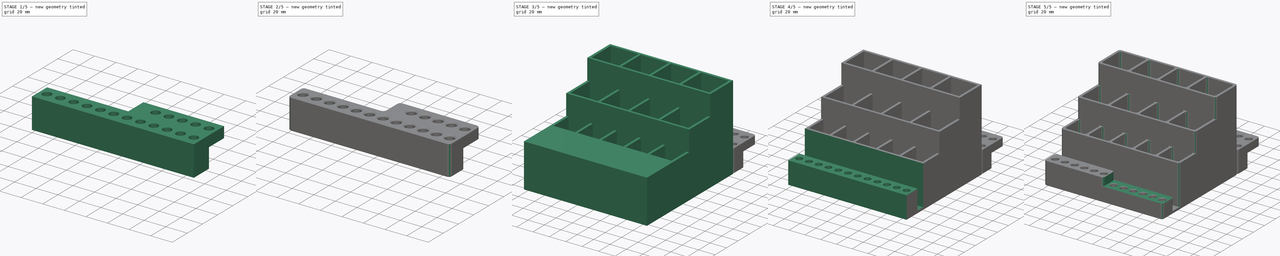
[diagram: build sequence overview — one tinted view per stage of 5, left to right]
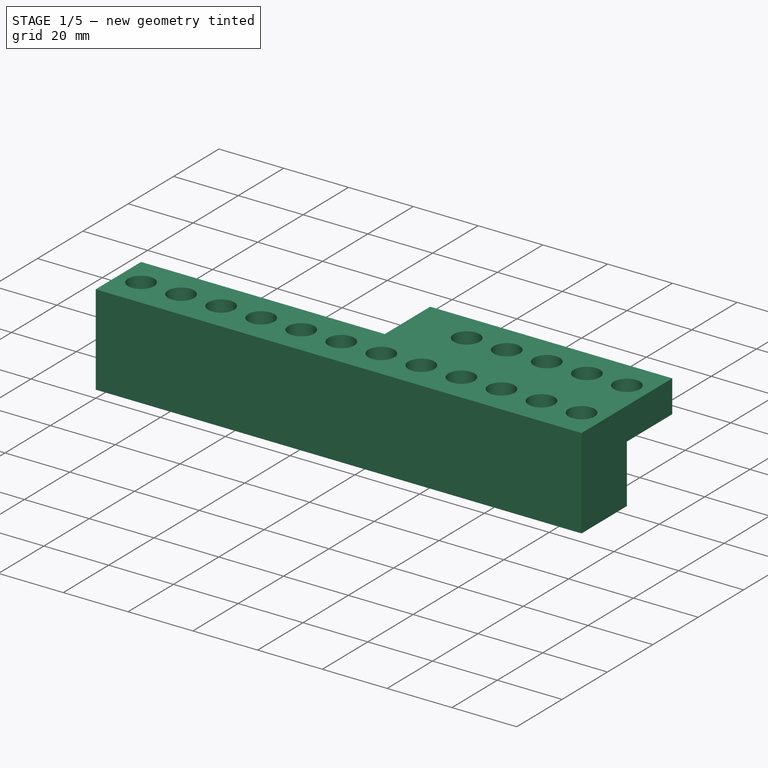
[diagram: stage 1 of 5 — iso view after this stage's code; geometry added in this stage tinted green]
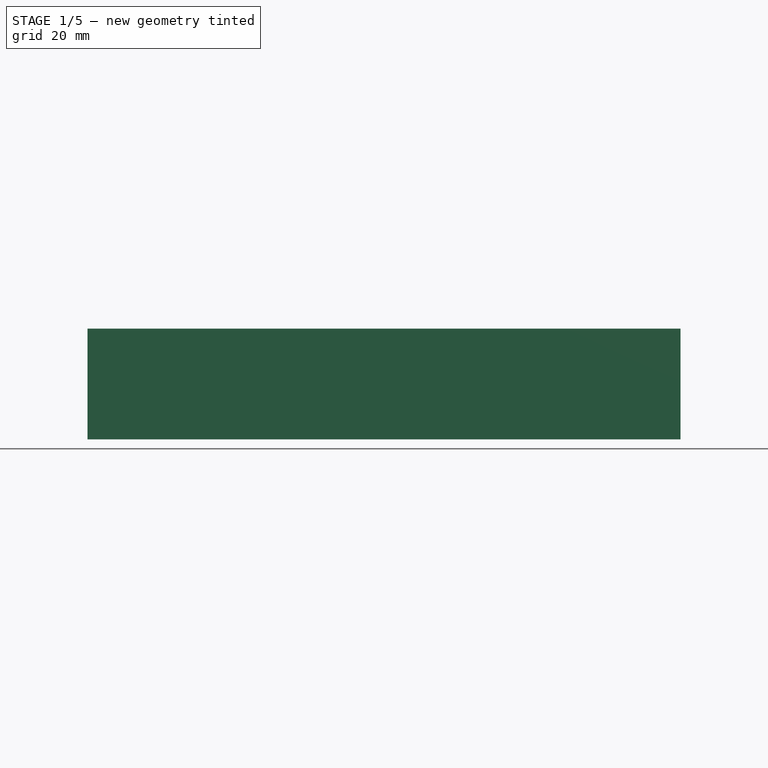
[diagram: stage 1 of 5 — front view after this stage's code; geometry added in this stage tinted green]
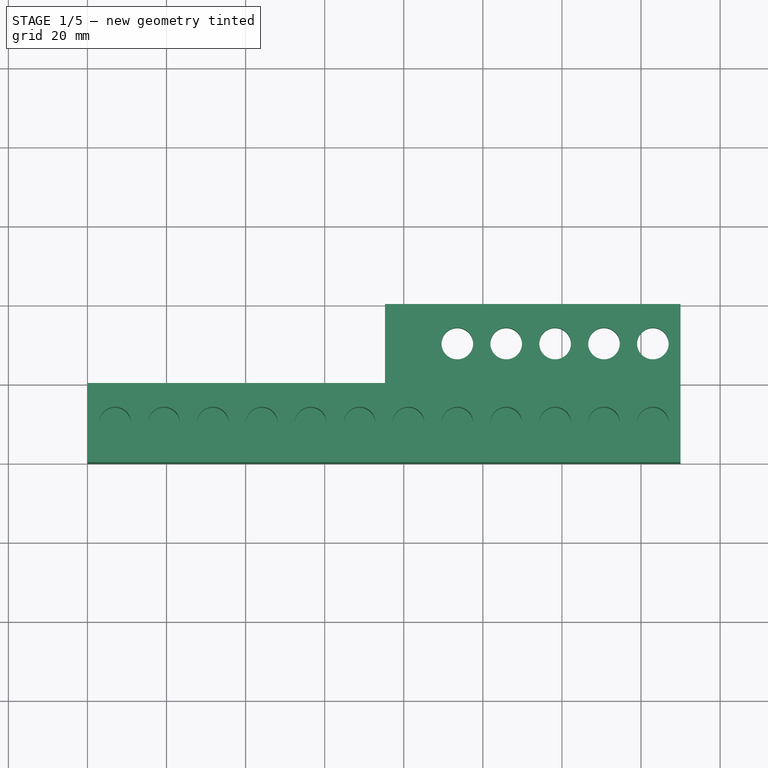
[diagram: stage 1 of 5 — top view after this stage's code; geometry added in this stage tinted green]
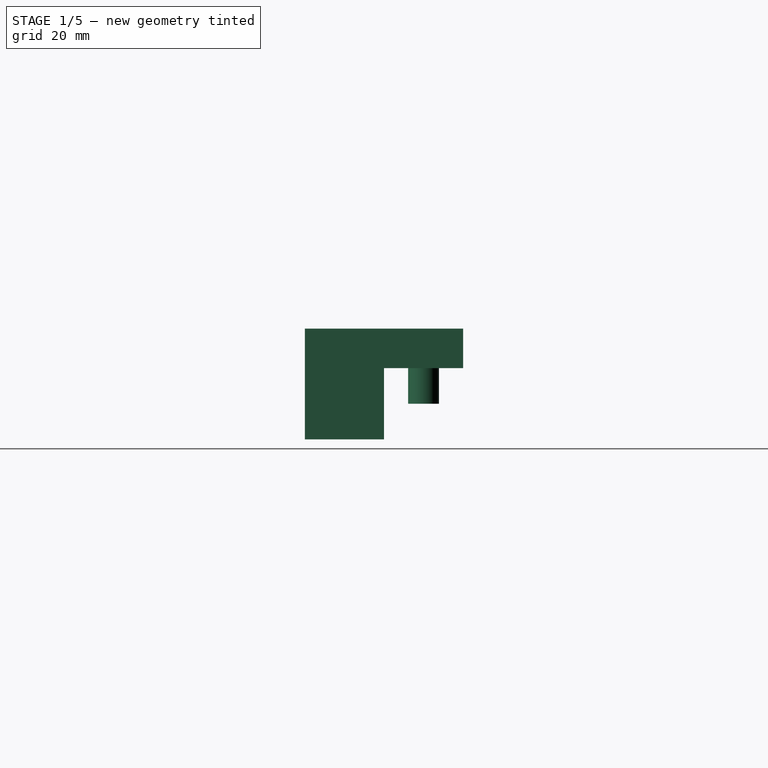
[diagram: stage 1 of 5 — right view after this stage's code; geometry added in this stage tinted green]
FCSTD DOCUMENT  (FreeCAD 0.21R33675 (Git))
Label: pen-holder
License: All rights reserved
LicenseURL: http://en.wikipedia.org/wiki/All_rights_reserved
objects: Sketcher::SketchObject×16, PartDesign::Pocket×14, PartDesign::Pad×4, PartDesign::Fillet×4, PartDesign::Chamfer×4, PartDesign::LinearPattern×2, PartDesign::Body×2
note: 72 computed .brp shape members not serialized (recipe doc carries the construction recipe); baked Part::Feature solids carry a one-line shape summary decoded from their .brp

FEATURE [PartDesign::Body] Body
  Group = -> [Sketch,Pad,Sketch001,Pocket,Sketch002,Pocket001,Sketch003,Pocket002,Sketch004,Pocket003,Sketch005,Pocket004,Sketch006,Pocket005,Sketch007,Pocket006,Sketch008,Pocket007,LinearPattern,Sketch009,Pocket008,Fillet,Fillet001,Sketch010,Pocket009,Fillet002,Chamfer,Chamfer001]
  Origin = -> Origin
  Tip = -> Chamfer001
FEATURE [Sketcher::SketchObject] Sketch011
  FullyConstrained = true
  MapMode = 5
  Support = -> [XY_Plane001]
  sketch-geometry (4):
    g0: LineSegment StartX=0 StartY=0 StartZ=0 EndX=150 EndY=0 EndZ=0
    g1: LineSegment StartX=150 StartY=0 StartZ=0 EndX=150 EndY=20 EndZ=0
    g2: LineSegment StartX=150 StartY=20 StartZ=0 EndX=0 EndY=20 EndZ=0
    g3: LineSegment StartX=0 StartY=20 StartZ=0 EndX=0 EndY=0 EndZ=0
  constraints (11):
    c: Coincident(g0,g1)
    c: Coincident(g1,g2)
    c: Coincident(g2,g3)
    c: Coincident(g3,g0)
    c: Horizontal(g0)
    c: Horizontal(g2)
    c: Vertical(g1)
    c: Vertical(g3)
    c: Coincident(g0,g-1)
    c: DistanceX(g2,g2) = 150
    c: DistanceY(g1,g1) = 20
FEATURE [PartDesign::Pad] Pad001
  Direction = (0,0,1)
  Length = 28
  Length2 = 10
  Profile = -> Sketch011
  ReferenceAxis = -> Sketch011 [N_Axis]
  Type = 0
FEATURE [Sketcher::SketchObject] Sketch012
  FullyConstrained = true
  MapMode = 5
  Placement = pos=(0,0,28) rot=(0,0,1;0rad)
  Support = -> [Pad001]
  sketch-geometry (1):
    g0: Circle CenterX=7 CenterY=10 CenterZ=0 NormalX=0 NormalY=0 NormalZ=1 AngleXU=0 Radius=4
  constraints (3):
    c: DistanceX(g-1,g0) = 7
    c: Radius(g0) = 4
    c: DistanceY(g-1,g0) = 10
FEATURE [PartDesign::Pocket] Pocket010
  BaseFeature = -> Pad001
  Direction = (0,0,-1)
  Length = 15
  Length2 = 5
  Profile = -> Sketch012
  ReferenceAxis = -> Sketch012 [N_Axis]
  Type = 0
FEATURE [PartDesign::LinearPattern] LinearPattern001
  BaseFeature = -> Pocket010
  Direction = -> Sketch012 [H_Axis]
  Length = 136
  Occurrences = 12
  Originals = -> [Pocket010]
FEATURE [Sketcher::SketchObject] Sketch013
  ExternalGeometry = -> [LinearPattern001]
  FullyConstrained = true
  MapMode = 5
  Placement = pos=(0,0,28) rot=(0,0,1;0rad)
  Support = -> [LinearPattern001]
  sketch-geometry (4):
    g0: LineSegment StartX=150 StartY=20 StartZ=0 EndX=75.25 EndY=20 EndZ=0
    g1: LineSegment StartX=75.25 StartY=20 StartZ=0 EndX=75.25 EndY=40 EndZ=0
    g2: LineSegment StartX=75.25 StartY=40 StartZ=0 EndX=150 EndY=40 EndZ=0
    g3: LineSegment StartX=150 StartY=40 StartZ=0 EndX=150 EndY=20 EndZ=0
  constraints (11):
    c: Coincident(g0,g1)
    c: Coincident(g1,g2)
    c: Coincident(g2,g3)
    c: Coincident(g3,g0)
    c: Horizontal(g0)
    c: Horizontal(g2)
    c: Vertical(g1)
    c: Vertical(g3)
    c: Coincident(g0,g-3)
    c: DistanceX(g2,g2) = 74.75
    c: DistanceY(g3,g3) = 20
FEATURE [PartDesign::Pad] Pad002
  BaseFeature = -> LinearPattern001
  Direction = (0,0,1)
  Length = 10
  Length2 = 10
  Profile = -> Sketch013
  ReferenceAxis = -> Sketch013 [N_Axis]
  Reversed = true
  Type = 0
FEATURE [Sketcher::SketchObject] Sketch014
  ExternalGeometry = -> [Pad002]
  FullyConstrained = true
  MapMode = 5
  Placement = pos=(0,0,28) rot=(0,0,1;0rad)
  Support = -> [Pad002]
  sketch-geometry (5):
    g0: Circle CenterX=93.5455 CenterY=30 CenterZ=0 NormalX=0 NormalY=0 NormalZ=1 AngleXU=0 Radius=4
    g1: Circle CenterX=105.909 CenterY=30 CenterZ=0 NormalX=0 NormalY=0 NormalZ=1 AngleXU=0 Radius=4
    g2: Circle CenterX=118.273 CenterY=30 CenterZ=0 NormalX=0 NormalY=0 NormalZ=1 AngleXU=0 Radius=4
    g3: Circle CenterX=130.636 CenterY=30 CenterZ=0 NormalX=0 NormalY=0 NormalZ=1 AngleXU=0 Radius=4
    g4: Circle CenterX=143 CenterY=30 CenterZ=0 NormalX=0 NormalY=0 NormalZ=1 AngleXU=0 Radius=4
  constraints (15):
    c: Equal(g0,g1)
    c: Equal(g1,g2)
    c: Equal(g2,g3)
    c: Equal(g3,g4)
    c: Horizontal(g0,g1)
    c: Horizontal(g1,g2)
    c: Horizontal(g2,g3)
    c: Horizontal(g3,g4)
    c: Vertical(g0,g-5)
    c: Vertical(g1,g-6)
    c: Vertical(g2,g-7)
    c: Vertical(g3,g-8)
    c: Vertical(g4,g-9)
    c: DistanceY(g-3,g0) = 10
    c: Equal(g0,g-5)
FEATURE [PartDesign::Pocket] Pocket011
  BaseFeature = -> Pad002
  Direction = (0,0,-1)
  Length = 5
  Length2 = 5
  Profile = -> Sketch014
  ReferenceAxis = -> Sketch014 [N_Axis]
  Type = 1
FEATURE [Sketcher::SketchObject] Sketch015
  ExternalGeometry = -> [Pocket011]
  FullyConstrained = true
  MapMode = 5
  Placement = pos=(0,0,18) rot=(1,0,0;3.14159rad)
  Support = -> [Pocket011]
  sketch-geometry (1):
    g0: Circle CenterX=81.1818 CenterY=-30 CenterZ=0 NormalX=0 NormalY=0 NormalZ=1 AngleXU=0 Radius=3.9
  constraints (3):
    c: Vertical(g0,g-4)
    c: DistanceY(g-3,g0) = 10
    c: Radius(g0) = 3.9
FEATURE [PartDesign::Pad] Pad003
  BaseFeature = -> Pocket011
  Direction = (0,0,-1)
  Length = 9
  Length2 = 10
  Profile = -> Sketch015
  ReferenceAxis = -> Sketch015 [N_Axis]
  Type = 0
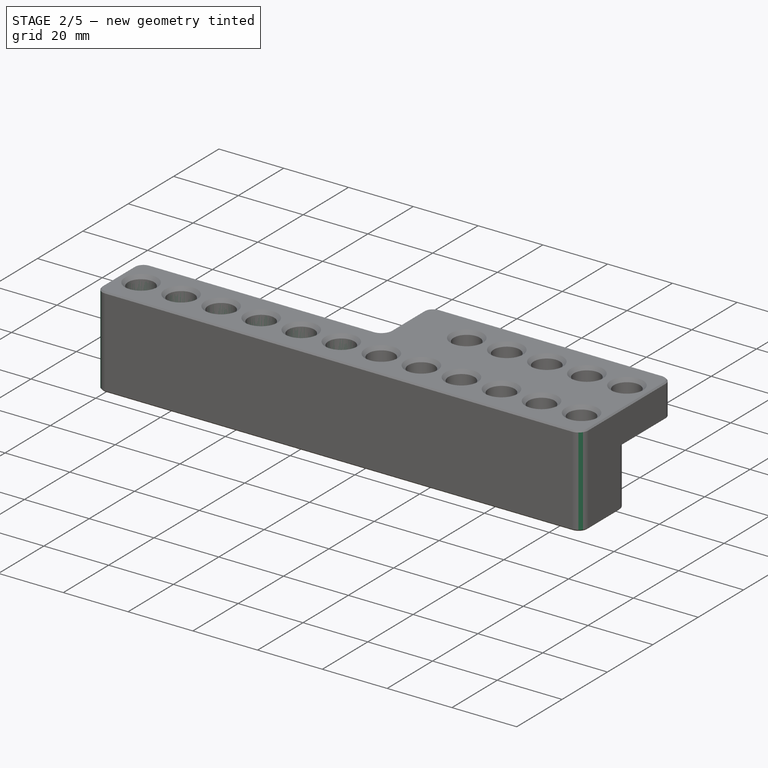
[diagram: stage 2 of 5 — iso view after this stage's code; geometry added in this stage tinted green]
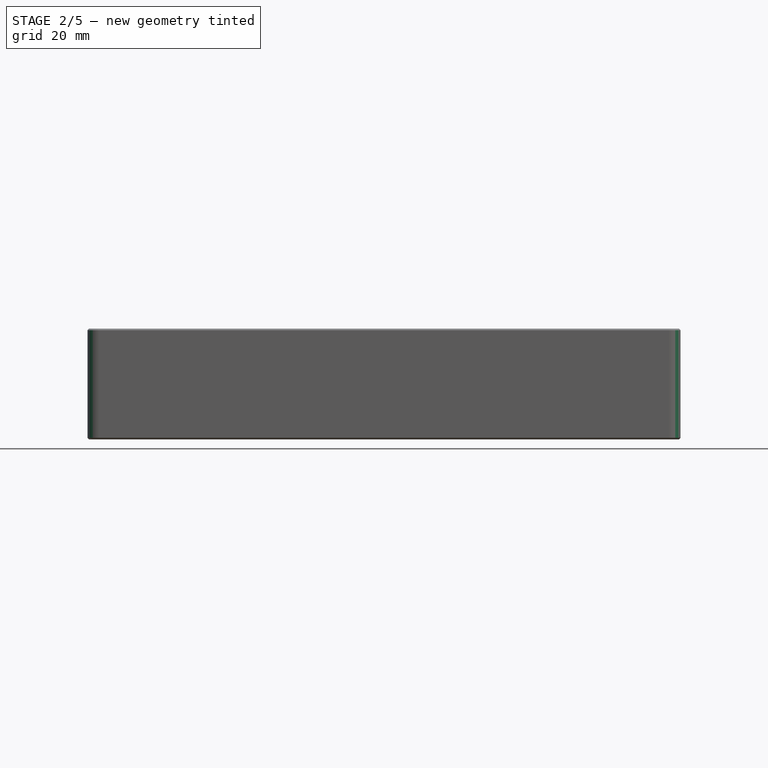
[diagram: stage 2 of 5 — front view after this stage's code; geometry added in this stage tinted green]
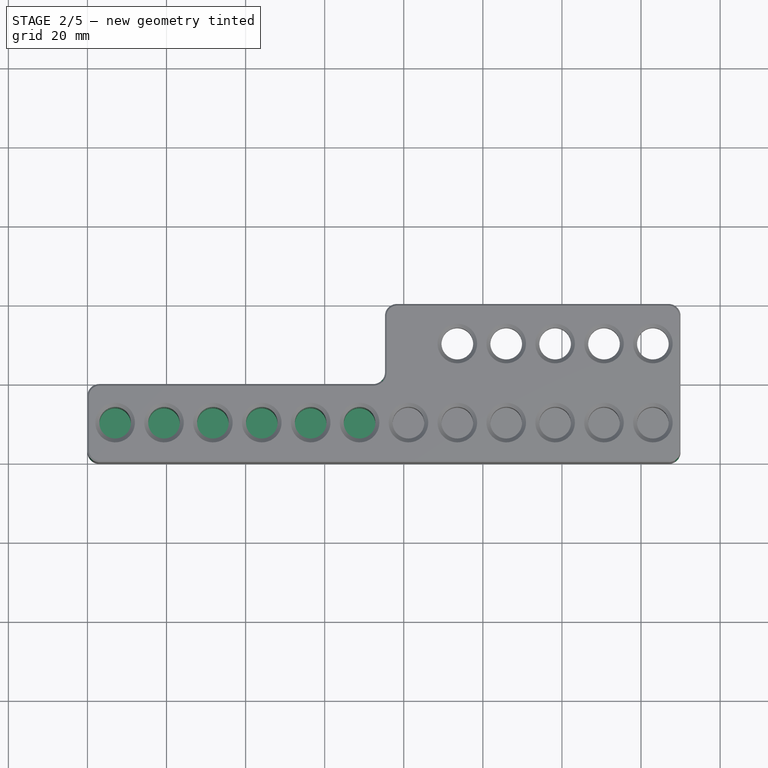
[diagram: stage 2 of 5 — top view after this stage's code; geometry added in this stage tinted green]
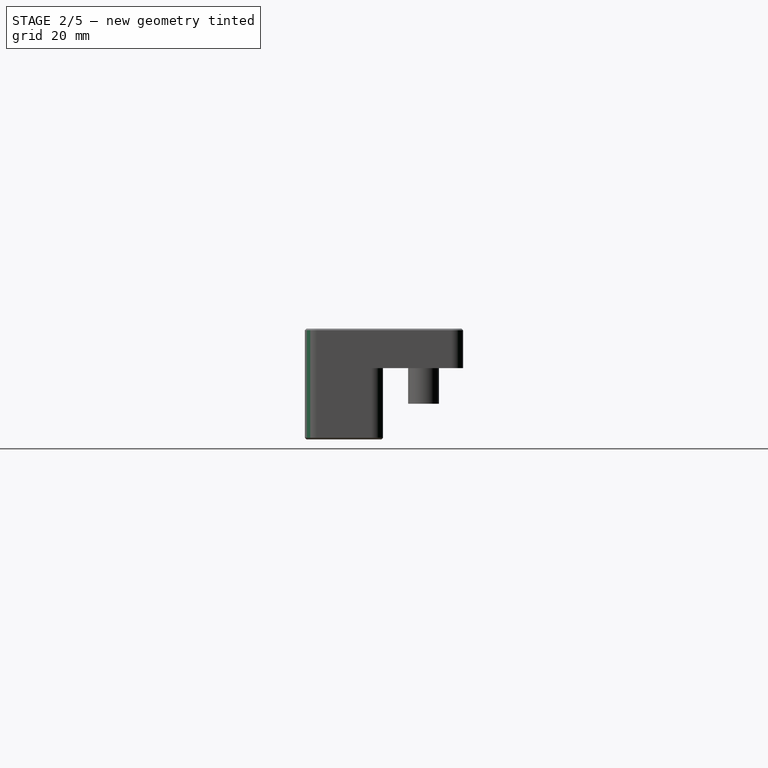
[diagram: stage 2 of 5 — right view after this stage's code; geometry added in this stage tinted green]
FEATURE [PartDesign::Pocket] Pocket012
  BaseFeature = -> Pad003
  Direction = (0,-1,0)
  Length = 0.25
  Length2 = 5
  Profile = -> Pad003 [Face6]
  Type = 0
FEATURE [PartDesign::Pocket] Pocket013
  BaseFeature = -> Pocket012
  Direction = (0,0,-1)
  Length = 10
  Length2 = 5
  Profile = -> Pocket012 [Face31,Face32,Face33,Face34,Face35,Face36]
  Refine = true
  Type = 0
FEATURE [PartDesign::Fillet] Fillet003
  Base = -> Pocket013 [Edge25,Edge19,Edge35,Edge20,Edge33,Edge29,Edge31]
  BaseFeature = -> Pocket013
  Radius = 3
  SupportTransform = false
  UseAllEdges = false
FEATURE [PartDesign::Chamfer] Chamfer002
  Angle = 45
  Base = -> Fillet003 [Face2,Edge18]
  BaseFeature = -> Fillet003
  ChamferType = 0
  FlipDirection = false
  Size = 0.4
  Size2 = 1
  SupportTransform = false
  UseAllEdges = false
FEATURE [PartDesign::Chamfer] Chamfer003
  Angle = 45
  Base = -> Chamfer002 [Edge41,Edge52,Edge51,Edge50,Edge49,Edge48,Edge47,Edge46,Edge53,Edge54,Edge55,Edge45,Edge44,Edge43,Edge42,Edge57,Edge56]
  BaseFeature = -> Chamfer002
  ChamferType = 0
  FlipDirection = false
  Size = 1
  Size2 = 1
  SupportTransform = false
  UseAllEdges = false
FEATURE [PartDesign::Body] Body001
  Group = -> [Sketch011,Pad001,Sketch012,Pocket010,LinearPattern001,Sketch013,Pad002,Sketch014,Pocket011,Sketch015,Pad003,Pocket012,Pocket013,Fillet003,Chamfer002,Chamfer003]
  Origin = -> Origin001
  Placement = pos=(0,-155.9,0) rot=(0,0,1;0rad)
  Tip = -> Chamfer003
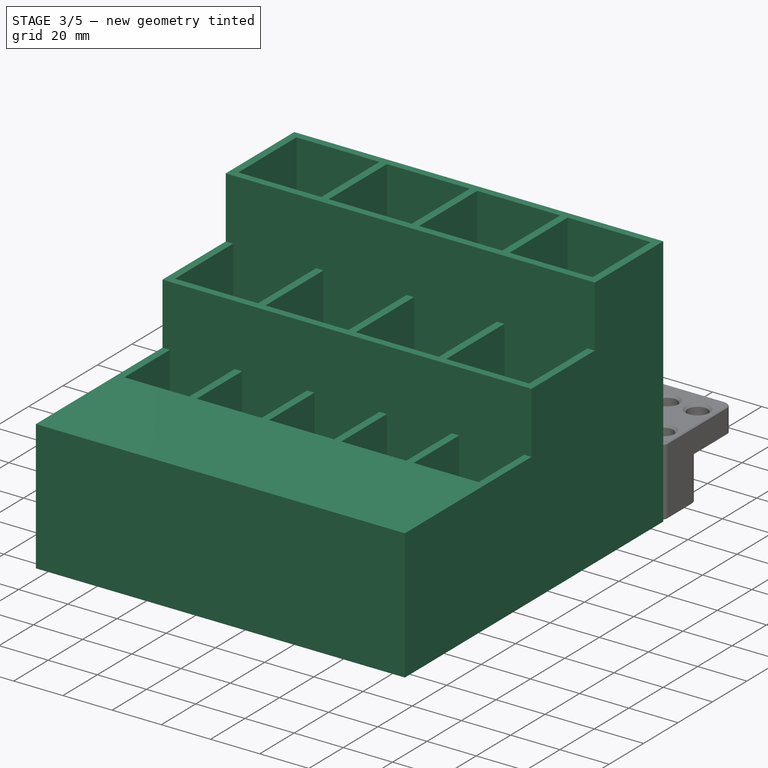
[diagram: stage 3 of 5 — iso view after this stage's code; geometry added in this stage tinted green]
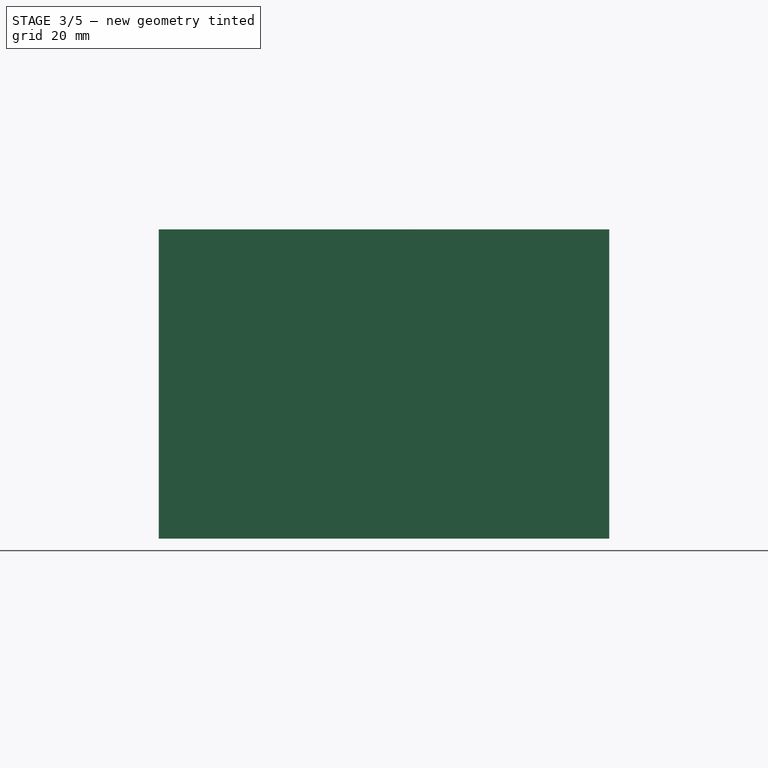
[diagram: stage 3 of 5 — front view after this stage's code; geometry added in this stage tinted green]
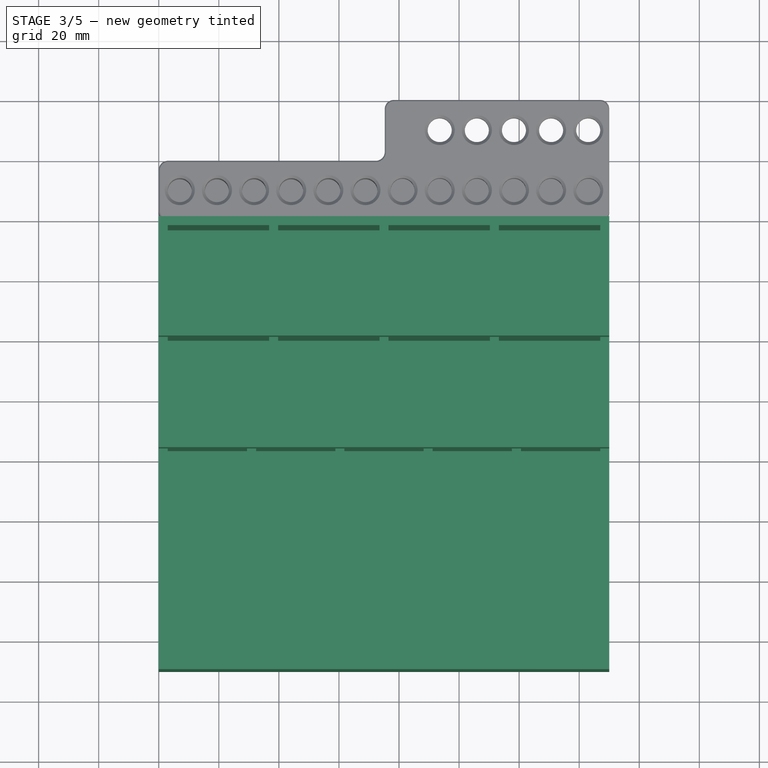
[diagram: stage 3 of 5 — top view after this stage's code; geometry added in this stage tinted green]
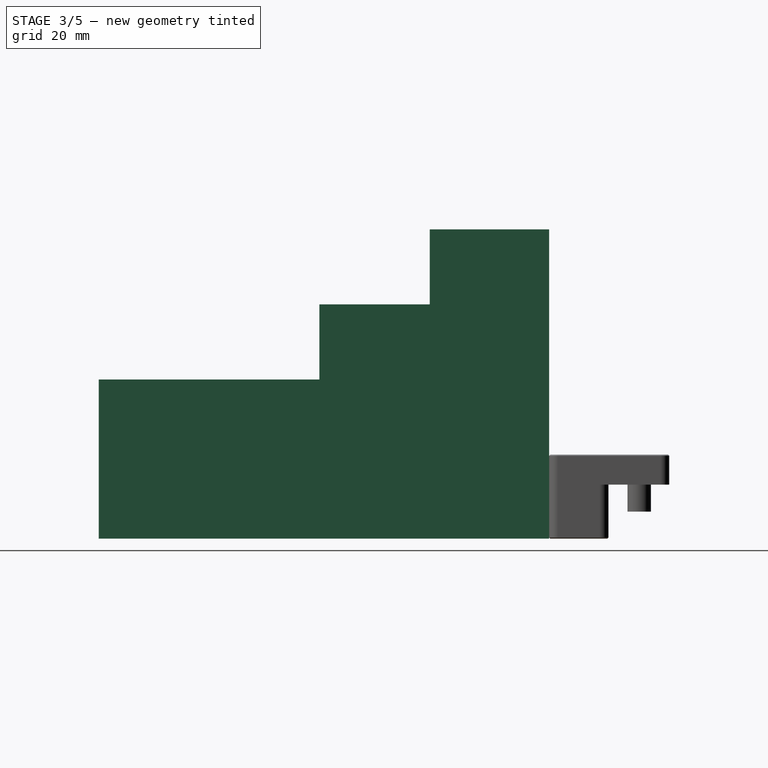
[diagram: stage 3 of 5 — right view after this stage's code; geometry added in this stage tinted green]
FEATURE [Sketcher::SketchObject] Sketch
  FullyConstrained = true
  MapMode = 5
  Support = -> [XY_Plane]
  sketch-geometry (4):
    g0: LineSegment StartX=0 StartY=0 StartZ=0 EndX=150 EndY=0 EndZ=0
    g1: LineSegment StartX=150 StartY=0 StartZ=0 EndX=150 EndY=-150 EndZ=0
    g2: LineSegment StartX=150 StartY=-150 StartZ=0 EndX=0 EndY=-150 EndZ=0
    g3: LineSegment StartX=0 StartY=-150 StartZ=0 EndX=0 EndY=0 EndZ=0
  constraints (11):
    c: Coincident(g0,g1)
    c: Coincident(g1,g2)
    c: Coincident(g2,g3)
    c: Coincident(g3,g0)
    c: Horizontal(g0)
    c: Horizontal(g2)
    c: Vertical(g1)
    c: Vertical(g3)
    c: Coincident(g0,g-1)
    c: DistanceX(g0,g0) = 150
    c: DistanceY(g1,g1) = 150
FEATURE [PartDesign::Pad] Pad
  Direction = (0,0,1)
  Length = 103
  Length2 = 10
  Profile = -> Sketch
  ReferenceAxis = -> Sketch [N_Axis]
  Type = 0
FEATURE [Sketcher::SketchObject] Sketch001
  ExternalGeometry = -> [Pad]
  FullyConstrained = true
  MapMode = 5
  Placement = pos=(0,0,103) rot=(0,0,1;0rad)
  Support = -> [Pad]
  sketch-geometry (16):
    g0: LineSegment StartX=3 StartY=-3 StartZ=0 EndX=36.75 EndY=-3 EndZ=0
    g1: LineSegment StartX=36.75 StartY=-3 StartZ=0 EndX=36.75 EndY=-36.75 EndZ=0
    g2: LineSegment StartX=36.75 StartY=-36.75 StartZ=0 EndX=3 EndY=-36.75 EndZ=0
    g3: LineSegment StartX=3 StartY=-36.75 StartZ=0 EndX=3 EndY=-3 EndZ=0
    g4: LineSegment StartX=39.75 StartY=-3 StartZ=0 EndX=73.5 EndY=-3 EndZ=0
    g5: LineSegment StartX=73.5 StartY=-3 StartZ=0 EndX=73.5 EndY=-36.75 EndZ=0
    g6: LineSegment StartX=73.5 StartY=-36.75 StartZ=0 EndX=39.75 EndY=-36.75 EndZ=0
    g7: LineSegment StartX=39.75 StartY=-36.75 StartZ=0 EndX=39.75 EndY=-3 EndZ=0
    g8: LineSegment StartX=76.5 StartY=-3 StartZ=0 EndX=110.25 EndY=-3 EndZ=0
    g9: LineSegment StartX=110.25 StartY=-3 StartZ=0 EndX=110.25 EndY=-36.75 EndZ=0
    g10: LineSegment StartX=110.25 StartY=-36.75 StartZ=0 EndX=76.5 EndY=-36.75 EndZ=0
    g11: LineSegment StartX=76.5 StartY=-36.75 StartZ=0 EndX=76.5 EndY=-3 EndZ=0
    g12: LineSegment StartX=113.25 StartY=-3 StartZ=0 EndX=147 EndY=-3 EndZ=0
    g13: LineSegment StartX=147 StartY=-3 StartZ=0 EndX=147 EndY=-36.75 EndZ=0
    g14: LineSegment StartX=147 StartY=-36.75 StartZ=0 EndX=113.25 EndY=-36.75 EndZ=0
    g15: LineSegment StartX=113.25 StartY=-36.75 StartZ=0 EndX=113.25 EndY=-3 EndZ=0
  constraints (48):
    c: Coincident(g0,g1)
    c: Coincident(g1,g2)
    c: Coincident(g2,g3)
    c: Coincident(g3,g0)
    c: Horizontal(g0)
    c: Horizontal(g2)
    c: Vertical(g1)
    c: Vertical(g3)
    c: Coincident(g4,g5)
    c: Coincident(g5,g6)
    c: Coincident(g6,g7)
    c: Coincident(g7,g4)
    c: Horizontal(g4)
    c: Horizontal(g6)
    c: Vertical(g5)
    c: Vertical(g7)
    c: Coincident(g8,g9)
    c: Coincident(g9,g10)
    c: Coincident(g10,g11)
    c: Coincident(g11,g8)
    c: Horizontal(g8)
    c: Horizontal(g10)
    c: Vertical(g9)
    c: Vertical(g11)
    c: Coincident(g12,g13)
    c: Coincident(g13,g14)
    c: Coincident(g14,g15)
    c: Coincident(g15,g12)
    c: Horizontal(g12)
    c: Horizontal(g14)
    c: Vertical(g13)
    c: Vertical(g15)
    c: Equal(g3,g2)
    c: Equal(g2,g7)
    c: Equal(g7,g6)
    c: Equal(g6,g11)
    c: Equal(g11,g10)
    c: Equal(g10,g15)
    c: Equal(g15,g14)
    c: Horizontal(g0,g4)
    c: Horizontal(g4,g8)
    c: Horizontal(g8,g12)
    c: DistanceY(g0,g-1) = 3
    c: DistanceX(g-1,g0) = 3
    c: DistanceX(g12,g-3) = 3
    c: DistanceX(g0,g4) = 3
    c: DistanceX(g4,g8) = 3
    c: DistanceX(g8,g12) = 3
FEATURE [PartDesign::Pocket] Pocket
  BaseFeature = -> Pad
  Direction = (0,0,-1)
  Length = 100
  Length2 = 5
  Profile = -> Sketch001
  ReferenceAxis = -> Sketch001 [N_Axis]
  Type = 0
FEATURE [Sketcher::SketchObject] Sketch002
  ExternalGeometry = -> [Pocket]
  FullyConstrained = true
  MapMode = 5
  Placement = pos=(0,0,103) rot=(0,0,1;0rad)
  Support = -> [Pocket]
  sketch-geometry (4):
    g0: LineSegment StartX=0 StartY=-39.75 StartZ=0 EndX=150 EndY=-39.75 EndZ=0
    g1: LineSegment StartX=150 StartY=-39.75 StartZ=0 EndX=150 EndY=-150 EndZ=0
    g2: LineSegment StartX=150 StartY=-150 StartZ=0 EndX=0 EndY=-150 EndZ=0
    g3: LineSegment StartX=0 StartY=-150 StartZ=0 EndX=0 EndY=-39.75 EndZ=0
  constraints (11):
    c: Coincident(g0,g1)
    c: Coincident(g1,g2)
    c: Coincident(g2,g3)
    c: Coincident(g3,g0)
    c: Horizontal(g0)
    c: Horizontal(g2)
    c: Vertical(g1)
    c: Vertical(g3)
    c: PointOnObject(g0,g-2)
    c: Coincident(g1,g-3)
    c: DistanceY(g0,g-4) = 3
FEATURE [PartDesign::Pocket] Pocket001
  BaseFeature = -> Pocket
  Direction = (0,0,-1)
  Length = 25
  Length2 = 5
  Profile = -> Sketch002
  ReferenceAxis = -> Sketch002 [N_Axis]
  Type = 0
FEATURE [Sketcher::SketchObject] Sketch003
  ExternalGeometry = -> [Pocket001]
  FullyConstrained = true
  MapMode = 5
  Placement = pos=(0,0,78) rot=(0,0,1;0rad)
  Support = -> [Pocket001]
  sketch-geometry (16):
    g0: LineSegment StartX=3 StartY=-39.75 StartZ=0 EndX=36.75 EndY=-39.75 EndZ=0
    g1: LineSegment StartX=36.75 StartY=-39.75 StartZ=0 EndX=36.75 EndY=-73.5 EndZ=0
    g2: LineSegment StartX=36.75 StartY=-73.5 StartZ=0 EndX=3 EndY=-73.5 EndZ=0
    g3: LineSegment StartX=3 StartY=-73.5 StartZ=0 EndX=3 EndY=-39.75 EndZ=0
    g4: LineSegment StartX=39.75 StartY=-39.75 StartZ=0 EndX=73.5 EndY=-39.75 EndZ=0
    g5: LineSegment StartX=73.5 StartY=-39.75 StartZ=0 EndX=73.5 EndY=-73.5 EndZ=0
    g6: LineSegment StartX=73.5 StartY=-73.5 StartZ=0 EndX=39.75 EndY=-73.5 EndZ=0
    g7: LineSegment StartX=39.75 StartY=-73.5 StartZ=0 EndX=39.75 EndY=-39.75 EndZ=0
    g8: LineSegment StartX=76.5 StartY=-39.75 StartZ=0 EndX=110.25 EndY=-39.75 EndZ=0
    g9: LineSegment StartX=110.25 StartY=-39.75 StartZ=0 EndX=110.25 EndY=-73.5 EndZ=0
    g10: LineSegment StartX=110.25 StartY=-73.5 StartZ=0 EndX=76.5 EndY=-73.5 EndZ=0
    g11: LineSegment StartX=76.5 StartY=-73.5 StartZ=0 EndX=76.5 EndY=-39.75 EndZ=0
    g12: LineSegment StartX=113.25 StartY=-39.75 StartZ=0 EndX=147 EndY=-39.75 EndZ=0
    g13: LineSegment StartX=147 StartY=-39.75 StartZ=0 EndX=147 EndY=-73.5 EndZ=0
    g14: LineSegment StartX=147 StartY=-73.5 StartZ=0 EndX=113.25 EndY=-73.5 EndZ=0
    g15: LineSegment StartX=113.25 StartY=-73.5 StartZ=0 EndX=113.25 EndY=-39.75 EndZ=0
  constraints (48):
    c: Coincident(g0,g1)
    c: Coincident(g1,g2)
    c: Coincident(g2,g3)
    c: Coincident(g3,g0)
    c: Horizontal(g0)
    c: Horizontal(g2)
    c: Vertical(g1)
    c: Vertical(g3)
    c: Coincident(g4,g5)
    c: Coincident(g5,g6)
    c: Coincident(g6,g7)
    c: Coincident(g7,g4)
    c: Horizontal(g4)
    c: Horizontal(g6)
    c: Vertical(g5)
    c: Vertical(g7)
    c: Coincident(g8,g9)
    c: Coincident(g9,g10)
    c: Coincident(g10,g11)
    c: Coincident(g11,g8)
    c: Horizontal(g8)
    c: Horizontal(g10)
    c: Vertical(g9)
    c: Vertical(g11)
    c: Coincident(g12,g13)
    c: Coincident(g13,g14)
    c: Coincident(g14,g15)
    c: Coincident(g15,g12)
    c: Horizontal(g12)
    c: Horizontal(g14)
    c: Vertical(g13)
    c: Vertical(g15)
    c: Equal(g0,g1)
    c: Equal(g1,g4)
    c: Equal(g4,g5)
    c: Equal(g5,g8)
    c: Equal(g8,g9)
    c: Equal(g9,g12)
    c: Equal(g12,g13)
    c: Horizontal(g0,g4)
    c: Horizontal(g4,g8)
    c: Horizontal(g8,g12)
    c: DistanceX(g0,g4) = 3
    c: DistanceX(g4,g8) = 3
    c: DistanceX(g8,g12) = 3
    c: DistanceX(g-11,g0) = 3
    c: DistanceX(g12,g-11) = 3
    c: Horizontal(g12,g-11)
FEATURE [PartDesign::Pocket] Pocket002
  BaseFeature = -> Pocket001
  Direction = (0,0,-1)
  Length = 75
  Length2 = 5
  Profile = -> Sketch003
  ReferenceAxis = -> Sketch003 [N_Axis]
  Type = 0
FEATURE [Sketcher::SketchObject] Sketch004
  ExternalGeometry = -> [Pocket002]
  FullyConstrained = true
  MapMode = 5
  Placement = pos=(0,0,78) rot=(0,0,1;0rad)
  Support = -> [Pocket002]
  sketch-geometry (4):
    g0: LineSegment StartX=150 StartY=-150 StartZ=0 EndX=0 EndY=-150 EndZ=0
    g1: LineSegment StartX=0 StartY=-150 StartZ=0 EndX=0 EndY=-76.5 EndZ=0
    g2: LineSegment StartX=0 StartY=-76.5 StartZ=0 EndX=150 EndY=-76.5 EndZ=0
    g3: LineSegment StartX=150 StartY=-76.5 StartZ=0 EndX=150 EndY=-150 EndZ=0
  constraints (11):
    c: Coincident(g0,g1)
    c: Coincident(g1,g2)
    c: Coincident(g2,g3)
    c: Coincident(g3,g0)
    c: Horizontal(g0)
    c: Horizontal(g2)
    c: Vertical(g1)
    c: Vertical(g3)
    c: Coincident(g0,g-4)
    c: PointOnObject(g1,g-2)
    c: DistanceY(g1,g-3) = 3
FEATURE [PartDesign::Pocket] Pocket003
  BaseFeature = -> Pocket002
  Direction = (0,0,-1)
  Length = 25
  Length2 = 5
  Profile = -> Sketch004
  ReferenceAxis = -> Sketch004 [N_Axis]
  Type = 0
FEATURE [Sketcher::SketchObject] Sketch005
  ExternalGeometry = -> [Pocket003]
  FullyConstrained = true
  MapMode = 5
  Placement = pos=(0,0,53) rot=(0,0,1;0rad)
  Support = -> [Pocket003]
  sketch-geometry (20):
    g0: LineSegment StartX=3 StartY=-76.5 StartZ=0 EndX=29.4 EndY=-76.5 EndZ=0
    g1: LineSegment StartX=29.4 StartY=-76.5 StartZ=0 EndX=29.4 EndY=-102.9 EndZ=0
    g2: LineSegment StartX=29.4 StartY=-102.9 StartZ=0 EndX=3 EndY=-102.9 EndZ=0
    g3: LineSegment StartX=3 StartY=-102.9 StartZ=0 EndX=3 EndY=-76.5 EndZ=0
    g4: LineSegment StartX=32.4 StartY=-76.5 StartZ=0 EndX=58.8 EndY=-76.5 EndZ=0
    g5: LineSegment StartX=58.8 StartY=-76.5 StartZ=0 EndX=58.8 EndY=-102.9 EndZ=0
    g6: LineSegment StartX=58.8 StartY=-102.9 StartZ=0 EndX=32.4 EndY=-102.9 EndZ=0
    g7: LineSegment StartX=32.4 StartY=-102.9 StartZ=0 EndX=32.4 EndY=-76.5 EndZ=0
    g8: LineSegment StartX=61.8 StartY=-76.5 StartZ=0 EndX=88.2 EndY=-76.5 EndZ=0
    g9: LineSegment StartX=88.2 StartY=-76.5 StartZ=0 EndX=88.2 EndY=-102.9 EndZ=0
    g10: LineSegment StartX=88.2 StartY=-102.9 StartZ=0 EndX=61.8 EndY=-102.9 EndZ=0
    g11: LineSegment StartX=61.8 StartY=-102.9 StartZ=0 EndX=61.8 EndY=-76.5 EndZ=0
    g12: LineSegment StartX=91.2 StartY=-76.5 StartZ=0 EndX=117.6 EndY=-76.5 EndZ=0
    g13: LineSegment StartX=117.6 StartY=-76.5 StartZ=0 EndX=117.6 EndY=-102.9 EndZ=0
    g14: LineSegment StartX=117.6 StartY=-102.9 StartZ=0 EndX=91.2 EndY=-102.9 EndZ=0
    g15: LineSegment StartX=91.2 StartY=-102.9 StartZ=0 EndX=91.2 EndY=-76.5 EndZ=0
    g16: LineSegment StartX=120.6 StartY=-76.5 StartZ=0 EndX=147 EndY=-76.5 EndZ=0
    g17: LineSegment StartX=147 StartY=-76.5 StartZ=0 EndX=147 EndY=-102.9 EndZ=0
    g18: LineSegment StartX=147 StartY=-102.9 StartZ=0 EndX=120.6 EndY=-102.9 EndZ=0
    g19: LineSegment StartX=120.6 StartY=-102.9 StartZ=0 EndX=120.6 EndY=-76.5 EndZ=0
  constraints (60):
    c: Coincident(g0,g1)
    c: Coincident(g1,g2)
    c: Coincident(g2,g3)
    c: Coincident(g3,g0)
    c: Horizontal(g0)
    c: Horizontal(g2)
    c: Vertical(g1)
    c: Vertical(g3)
    c: Coincident(g4,g5)
    c: Coincident(g5,g6)
    c: Coincident(g6,g7)
    c: Coincident(g7,g4)
    c: Horizontal(g4)
    c: Horizontal(g6)
    c: Vertical(g5)
    c: Vertical(g7)
    c: Coincident(g8,g9)
    c: Coincident(g9,g10)
    c: Coincident(g10,g11)
    c: Coincident(g11,g8)
    c: Horizontal(g8)
    c: Horizontal(g10)
    c: Vertical(g9)
    c: Vertical(g11)
    c: Coincident(g12,g13)
    c: Coincident(g13,g14)
    c: Coincident(g14,g15)
    c: Coincident(g15,g12)
    c: Horizontal(g12)
    c: Horizontal(g14)
    c: Vertical(g13)
    c: Vertical(g15)
    c: Coincident(g16,g17)
    c: Coincident(g17,g18)
    c: Coincident(g18,g19)
    c: Coincident(g19,g16)
    c: Horizontal(g16)
    c: Horizontal(g18)
    c: Vertical(g17)
    c: Vertical(g19)
    c: Equal(g0,g1)
    c: Equal(g1,g4)
    c: Equal(g4,g5)
    c: Equal(g5,g8)
    c: Equal(g8,g9)
    c: Equal(g9,g12)
    c: Equal(g12,g13)
    c: Equal(g13,g16)
    c: Equal(g16,g17)
    c: Horizontal(g0,g4)
    c: Horizontal(g4,g8)
    c: Horizontal(g8,g12)
    c: Horizontal(g12,g16)
    c: DistanceX(g-3,g0) = 3
    c: DistanceX(g0,g4) = 3
    c: DistanceX(g4,g8) = 3
    c: DistanceX(g8,g12) = 3
    c: DistanceX(g12,g16) = 3
    c: DistanceX(g16,g-3) = 3
    c: Horizontal(g16,g-3)
FEATURE [PartDesign::Pocket] Pocket004
  BaseFeature = -> Pocket003
  Direction = (0,0,-1)
  Length = 50
  Length2 = 5
  Profile = -> Sketch005
  ReferenceAxis = -> Sketch005 [N_Axis]
  Type = 0
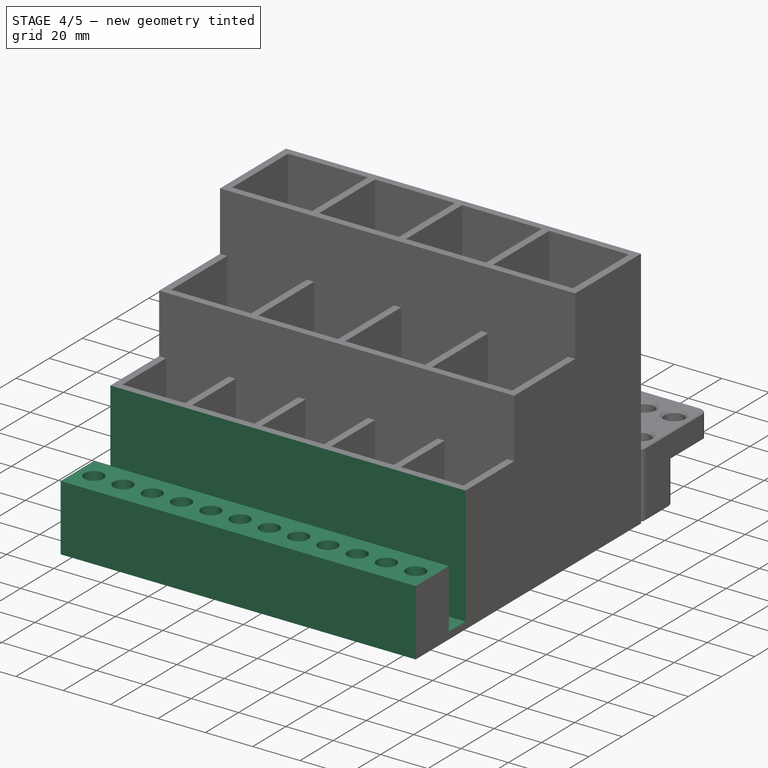
[diagram: stage 4 of 5 — iso view after this stage's code; geometry added in this stage tinted green]
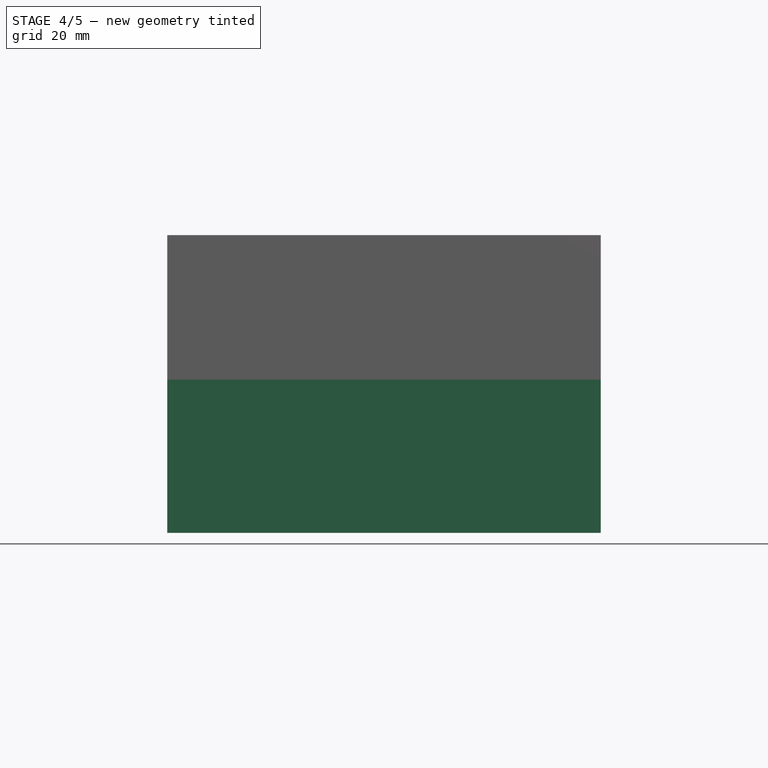
[diagram: stage 4 of 5 — front view after this stage's code; geometry added in this stage tinted green]
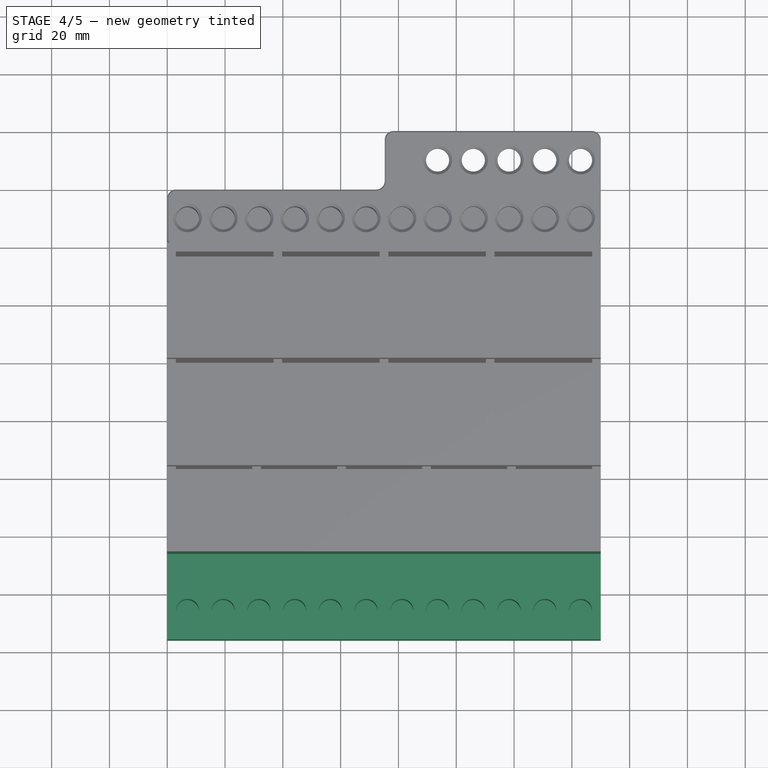
[diagram: stage 4 of 5 — top view after this stage's code; geometry added in this stage tinted green]
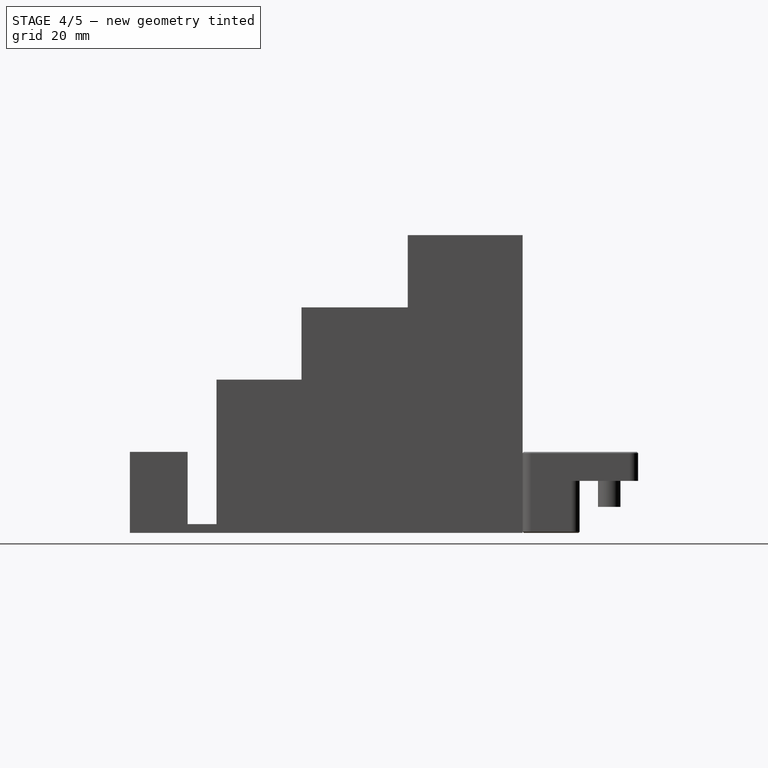
[diagram: stage 4 of 5 — right view after this stage's code; geometry added in this stage tinted green]
FEATURE [Sketcher::SketchObject] Sketch006
  ExternalGeometry = -> [Pocket004]
  FullyConstrained = true
  MapMode = 5
  Placement = pos=(0,0,53) rot=(0,0,1;0rad)
  Support = -> [Pocket004]
  sketch-geometry (4):
    g0: LineSegment StartX=150 StartY=-150 StartZ=0 EndX=0 EndY=-150 EndZ=0
    g1: LineSegment StartX=0 StartY=-150 StartZ=0 EndX=0 EndY=-105.9 EndZ=0
    g2: LineSegment StartX=0 StartY=-105.9 StartZ=0 EndX=150 EndY=-105.9 EndZ=0
    g3: LineSegment StartX=150 StartY=-105.9 StartZ=0 EndX=150 EndY=-150 EndZ=0
  constraints (11):
    c: Coincident(g0,g1)
    c: Coincident(g1,g2)
    c: Coincident(g2,g3)
    c: Coincident(g3,g0)
    c: Horizontal(g0)
    c: Horizontal(g2)
    c: Vertical(g1)
    c: Vertical(g3)
    c: Coincident(g0,g-4)
    c: PointOnObject(g1,g-2)
    c: DistanceY(g1,g-3) = 3
FEATURE [PartDesign::Pocket] Pocket005
  BaseFeature = -> Pocket004
  Direction = (0,0,-1)
  Length = 25
  Length2 = 5
  Profile = -> Sketch006
  ReferenceAxis = -> Sketch006 [N_Axis]
  Type = 0
FEATURE [Sketcher::SketchObject] Sketch007
  ExternalGeometry = -> [Pocket005]
  FullyConstrained = true
  MapMode = 5
  Placement = pos=(0,0,28) rot=(0,0,1;0rad)
  Support = -> [Pocket005]
  sketch-geometry (4):
    g0: LineSegment StartX=0 StartY=-105.9 StartZ=0 EndX=150 EndY=-105.9 EndZ=0
    g1: LineSegment StartX=150 StartY=-105.9 StartZ=0 EndX=150 EndY=-115.9 EndZ=0
    g2: LineSegment StartX=150 StartY=-115.9 StartZ=0 EndX=0 EndY=-115.9 EndZ=0
    g3: LineSegment StartX=0 StartY=-115.9 StartZ=0 EndX=0 EndY=-105.9 EndZ=0
  constraints (11):
    c: Coincident(g0,g1)
    c: Coincident(g1,g2)
    c: Coincident(g2,g3)
    c: Coincident(g3,g0)
    c: Horizontal(g0)
    c: Horizontal(g2)
    c: Vertical(g1)
    c: Vertical(g3)
    c: Coincident(g0,g-3)
    c: PointOnObject(g1,g-4)
    c: DistanceY(g1,g1) = 10
FEATURE [PartDesign::Pocket] Pocket006
  BaseFeature = -> Pocket005
  Direction = (0,0,-1)
  Length = 25
  Length2 = 5
  Profile = -> Sketch007
  ReferenceAxis = -> Sketch007 [N_Axis]
  Type = 0
FEATURE [Sketcher::SketchObject] Sketch008
  ExternalGeometry = -> [Pocket006]
  FullyConstrained = true
  MapMode = 5
  Placement = pos=(0,0,28) rot=(0,0,1;0rad)
  Support = -> [Pocket006]
  sketch-geometry (1):
    g0: Circle CenterX=7 CenterY=-125.9 CenterZ=0 NormalX=0 NormalY=0 NormalZ=1 AngleXU=0 Radius=4
  constraints (3):
    c: Radius(g0) = 4
    c: DistanceX(g-3,g0) = 7
    c: DistanceY(g0,g-3) = 10
FEATURE [PartDesign::Pocket] Pocket007
  BaseFeature = -> Pocket006
  Direction = (0,0,-1)
  Length = 25
  Length2 = 5
  Profile = -> Sketch008
  ReferenceAxis = -> Sketch008 [N_Axis]
  Type = 0
FEATURE [PartDesign::LinearPattern] LinearPattern
  BaseFeature = -> Pocket007
  Direction = -> Sketch008 [H_Axis]
  Length = 136
  Occurrences = 12
  Originals = -> [Pocket007]
FEATURE [Sketcher::SketchObject] Sketch009
  ExternalGeometry = -> [LinearPattern]
  FullyConstrained = true
  MapMode = 5
  Placement = pos=(0,0,28) rot=(0,0,1;0rad)
  Support = -> [LinearPattern]
  sketch-geometry (4):
    g0: LineSegment StartX=150 StartY=-150 StartZ=0 EndX=0 EndY=-150 EndZ=0
    g1: LineSegment StartX=0 StartY=-150 StartZ=0 EndX=0 EndY=-135.9 EndZ=0
    g2: LineSegment StartX=0 StartY=-135.9 StartZ=0 EndX=150 EndY=-135.9 EndZ=0
    g3: LineSegment StartX=150 StartY=-135.9 StartZ=0 EndX=150 EndY=-150 EndZ=0
  constraints (11):
    c: Coincident(g0,g1)
    c: Coincident(g1,g2)
    c: Coincident(g2,g3)
    c: Coincident(g3,g0)
    c: Horizontal(g0)
    c: Horizontal(g2)
    c: Vertical(g1)
    c: Vertical(g3)
    c: Coincident(g0,g-3)
    c: PointOnObject(g1,g-2)
    c: DistanceY(g2,g-4) = 10
FEATURE [PartDesign::Pocket] Pocket008
  BaseFeature = -> LinearPattern
  Direction = (0,0,-1)
  Length = 5
  Length2 = 5
  Profile = -> Sketch009
  ReferenceAxis = -> Sketch009 [N_Axis]
  Refine = true
  Type = 1
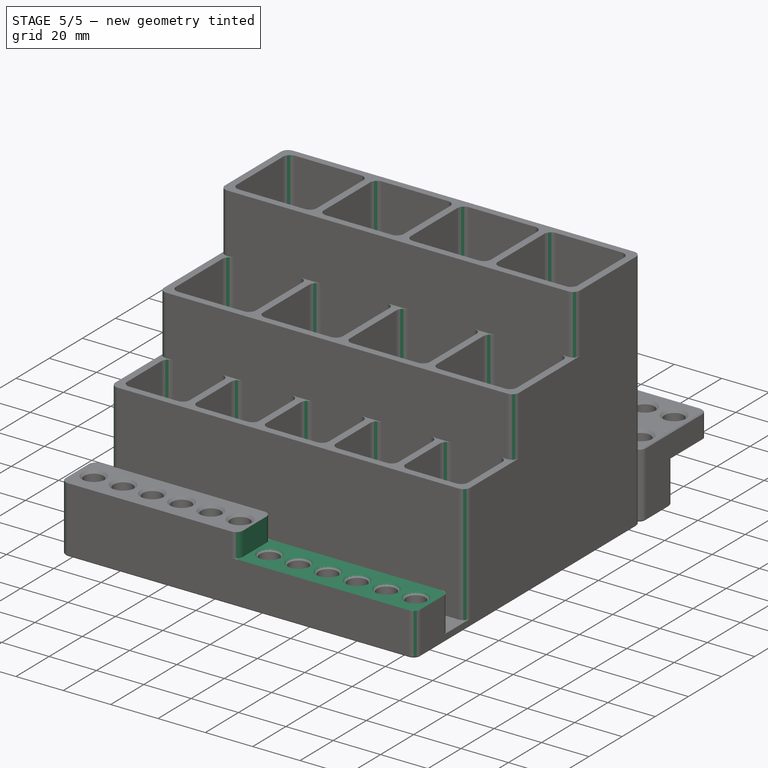
[diagram: stage 5 of 5 — iso view after this stage's code; geometry added in this stage tinted green]
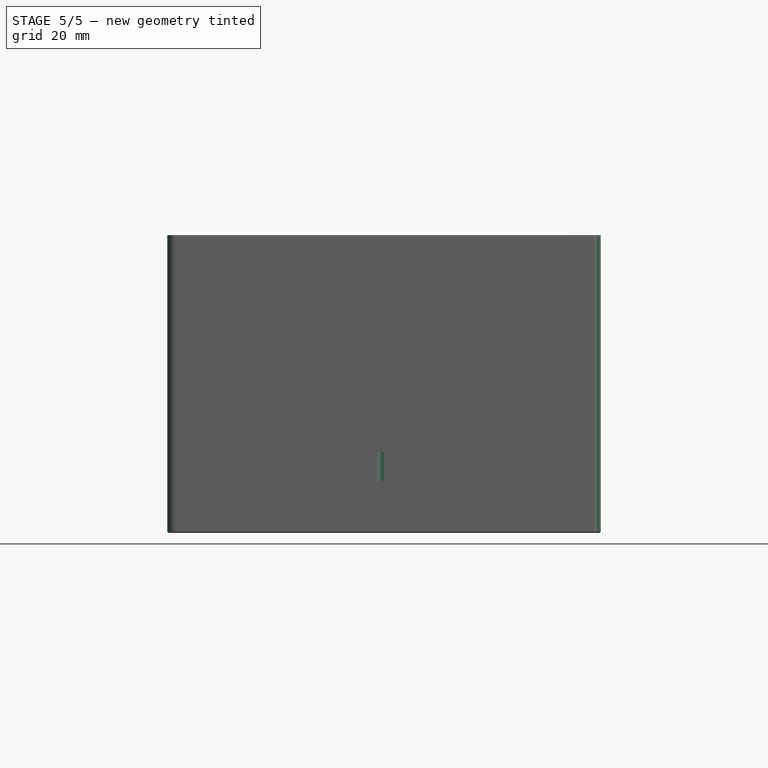
[diagram: stage 5 of 5 — front view after this stage's code; geometry added in this stage tinted green]
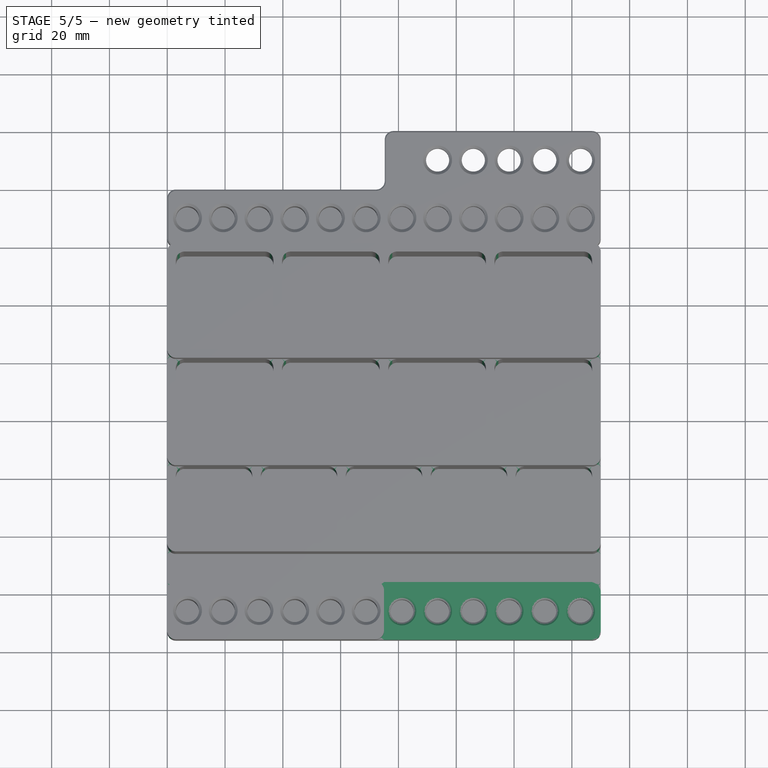
[diagram: stage 5 of 5 — top view after this stage's code; geometry added in this stage tinted green]
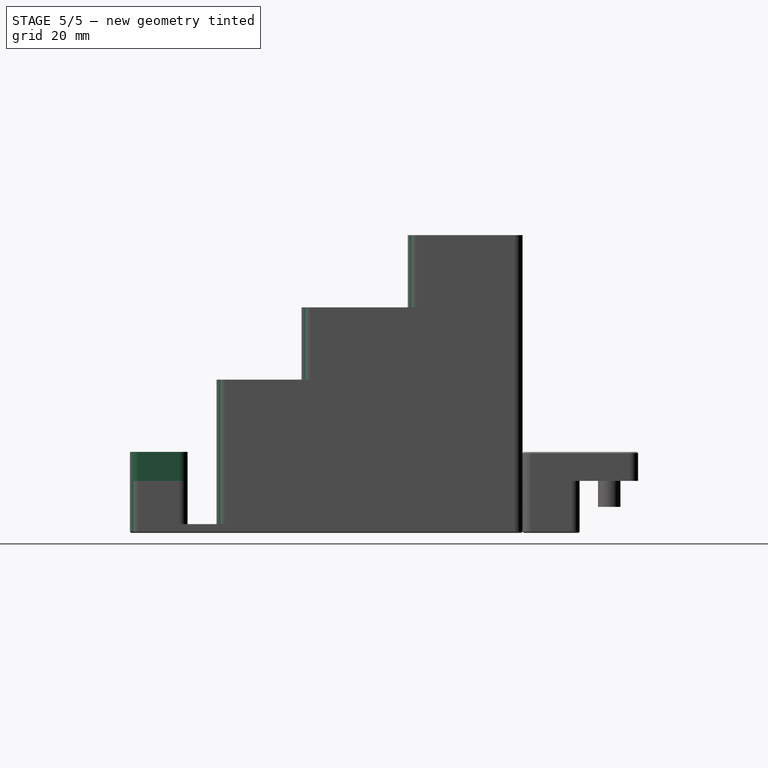
[diagram: stage 5 of 5 — right view after this stage's code; geometry added in this stage tinted green]
FEATURE [PartDesign::Fillet] Fillet
  Base = -> Pocket008 [Edge102,Edge101,Edge104,Edge109,Edge110,Edge106,Edge112,Edge117,Edge118,Edge114,Edge120,Edge125,Edge126,Edge122,Edge130,Edge128,Edge134,Edge141,Edge145,Edge148,Edge138,Edge155,Edge152,Edge159,Edge150,Edge154,Edge157,Edge143,Edge147,Edge136,Edge140,Edge133,Edge162,Edge166,Edge169,Edge176,Edge173,Edge183,Edge180,Edge190,+12 more]
  BaseFeature = -> Pocket008
  Radius = 3
  SupportTransform = false
  UseAllEdges = false
FEATURE [PartDesign::Fillet] Fillet001
  Base = -> Fillet [Edge96,Edge61,Edge54,Edge73,Edge94,Edge63,Edge65,Edge57,Edge59,Edge98,Edge100,Edge53]
  BaseFeature = -> Fillet
  Radius = 3
  SupportTransform = false
  UseAllEdges = false
FEATURE [Sketcher::SketchObject] Sketch010
  ExternalGeometry = -> [Fillet001]
  FullyConstrained = true
  MapMode = 5
  Placement = pos=(0,0,28) rot=(0,0,1;0rad)
  Support = -> [Fillet001]
  sketch-geometry (4):
    g0: LineSegment StartX=75.0018 StartY=-115.9 StartZ=0 EndX=150 EndY=-115.9 EndZ=0
    g1: LineSegment StartX=150 StartY=-115.9 StartZ=0 EndX=150 EndY=-135.9 EndZ=0
    g2: LineSegment StartX=150 StartY=-135.9 StartZ=0 EndX=75.0018 EndY=-135.9 EndZ=0
    g3: LineSegment StartX=75.0018 StartY=-135.9 StartZ=0 EndX=75.0018 EndY=-115.9 EndZ=0
  constraints (13):
    c: Coincident(g0,g1)
    c: Coincident(g1,g2)
    c: Coincident(g2,g3)
    c: Coincident(g3,g0)
    c: Horizontal(g0)
    c: Horizontal(g2)
    c: Vertical(g1)
    c: Vertical(g3)
    c: PointOnObject(g0,g-6)
    c: Horizontal(g-7,g1)
    c: Vertical(g-5,g0)
    c: DistanceX(g-3,g-4) = 12.3636
    c: DistanceX(g0,g-4) = 6.18
FEATURE [PartDesign::Pocket] Pocket009
  BaseFeature = -> Fillet001
  Direction = (0,0,-1)
  Length = 10
  Length2 = 5
  Profile = -> Sketch010
  ReferenceAxis = -> Sketch010 [N_Axis]
  Type = 0
FEATURE [PartDesign::Fillet] Fillet002
  Base = -> Pocket009 [Edge327,Edge328]
  BaseFeature = -> Pocket009
  Radius = 3
  SupportTransform = false
  UseAllEdges = false
FEATURE [PartDesign::Chamfer] Chamfer
  Angle = 45
  Base = -> Fillet002 [Edge9,Edge10,Edge11,Edge12,Edge13,Edge14,Edge64,Edge65,Edge66,Edge67,Edge68,Edge69]
  BaseFeature = -> Fillet002
  ChamferType = 0
  FlipDirection = false
  Size = 1
  Size2 = 1
  SupportTransform = false
  UseAllEdges = false
FEATURE [PartDesign::Chamfer] Chamfer001
  Angle = 45
  Base = -> Chamfer [Face20]
  BaseFeature = -> Chamfer
  ChamferType = 0
  FlipDirection = false
  Size = 0.4
  Size2 = 1
  SupportTransform = false
  UseAllEdges = false
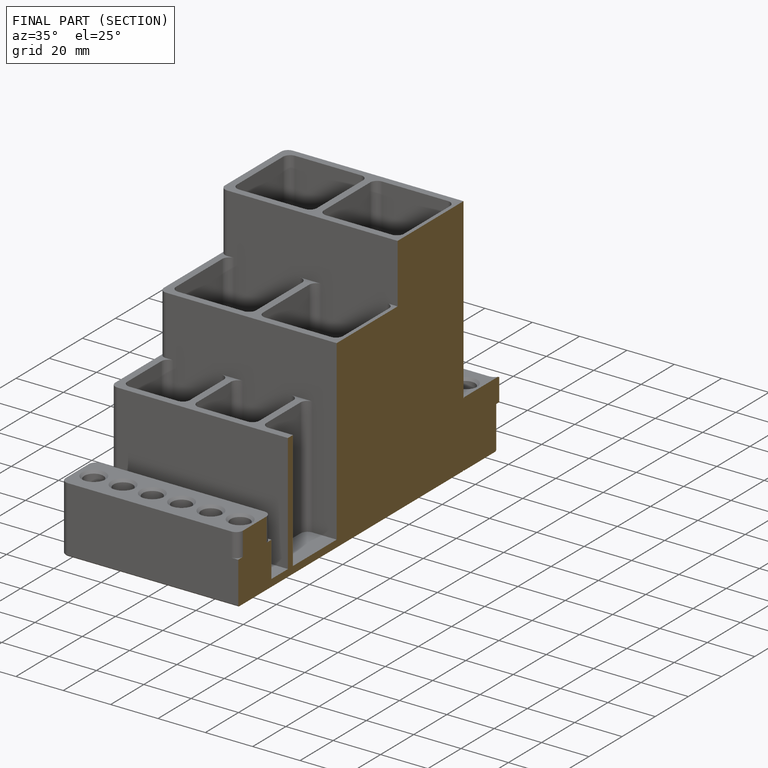
[diagram: finished part — half-section view (interior)]
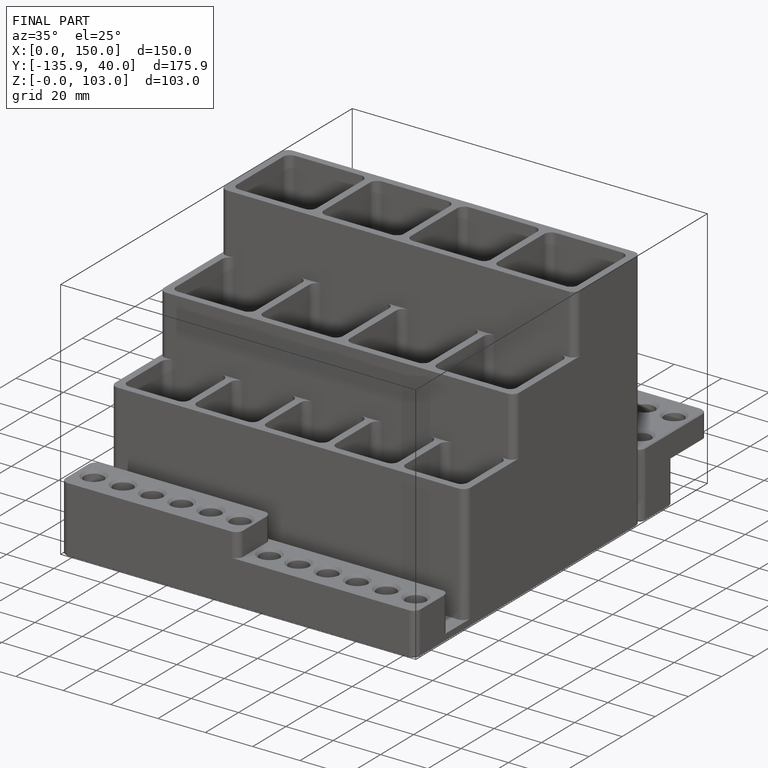
[diagram: finished part — iso view with bounding-box wireframe]
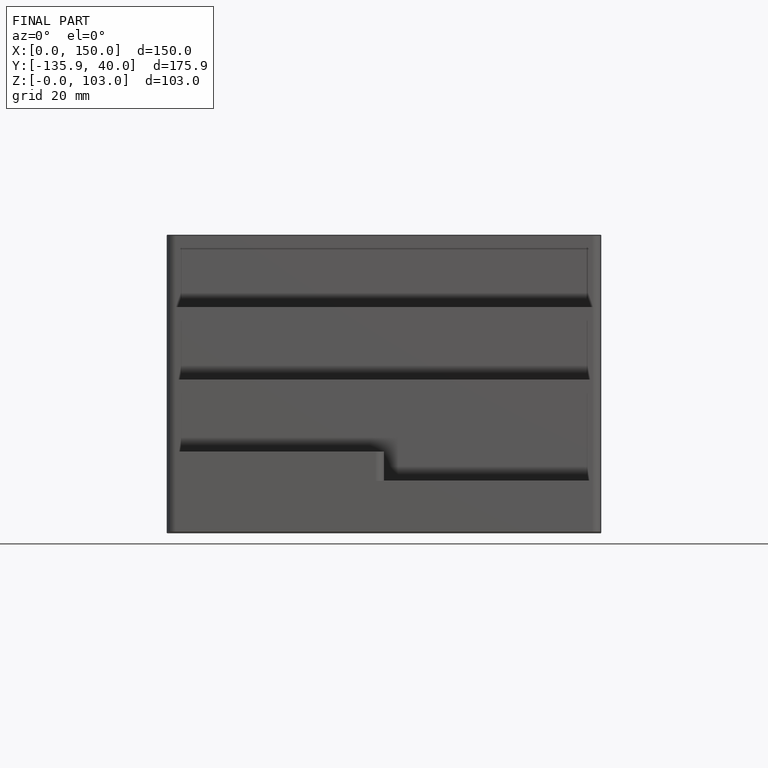
[diagram: finished part — front view with bounding-box wireframe]
